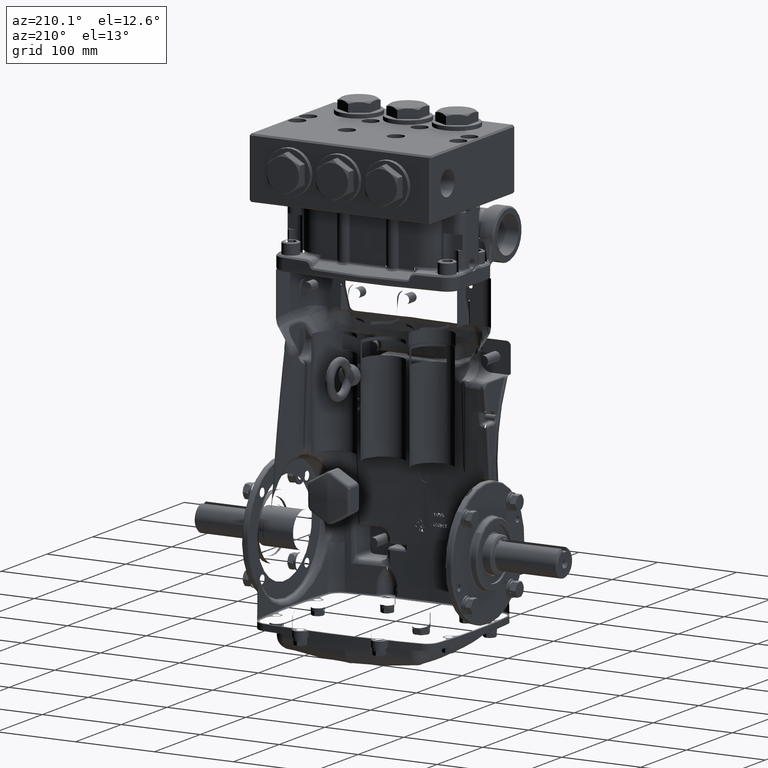
[diagram: clean part render]
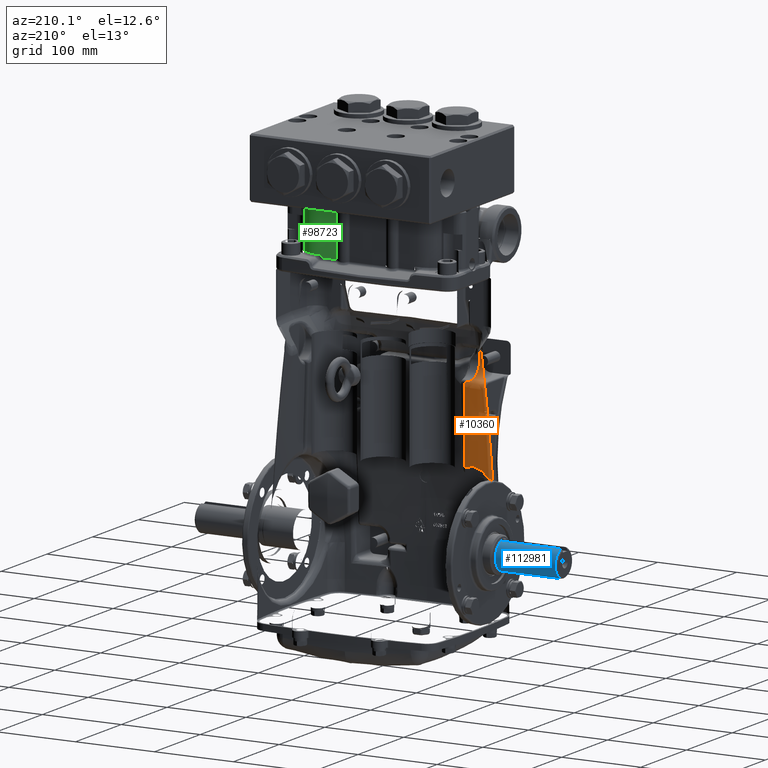
[diagram: same view with three faces highlighted in distinct colors, each labeled with its STEP entity id]
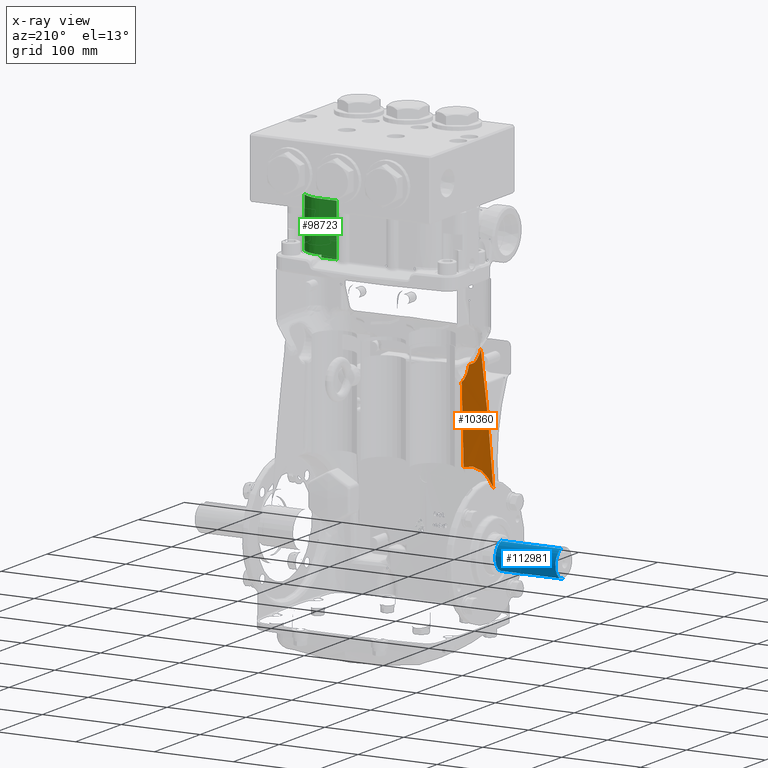
[diagram: x-ray of the same camera — body ghosted, the three highlighted faces saturated]
A machine part, auxiliary view with three faces highlighted in distinct colors.
The next image is the same camera in x-ray (body ghosted, the three faces saturated) — at least one of them is partly hidden behind the body in this view.
Their STEP definitions:

[orange] entity #10360 — the highlighted face is a freeform B-spline surface patch.
#811 = CARTESIAN_POINT ( 'NONE',  ( -3.754939931341113812, -0.8505913285578077243, 7.847891843103959708 ) ) ;
#1310 = CARTESIAN_POINT ( 'NONE',  ( -3.417568248015753873, -3.751042474745041044, 11.77165354330708702 ) ) ;
#1390 = CARTESIAN_POINT ( 'NONE',  ( -3.776933466327653921, -0.4144704050693510111, 7.431135478091147384 ) ) ;
#1775 = CARTESIAN_POINT ( 'NONE',  ( -3.900083861271899099, -0.1905272861021558295, 3.622187970200131613 ) ) ;
#1869 = CARTESIAN_POINT ( 'NONE',  ( -3.997422570790063912, 1.240083270499165558, 0.0000000000000000000 ) ) ;
#3438 = CARTESIAN_POINT ( 'NONE',  ( -3.899509889817446062, -0.3218101855018347113, 3.615279353734566659 ) ) ;
#3993 = CARTESIAN_POINT ( 'NONE',  ( -3.869292407137279177, -1.669603831104615743, 3.215774565174767119 ) ) ;
#4325 = CARTESIAN_POINT ( 'NONE',  ( -3.745405397256179381, -1.019297168964382161, 7.995148589254091220 ) ) ;
#4751 = CARTESIAN_POINT ( 'NONE',  ( -3.690221320976541097, -2.152150252242066131, 7.933309461599891144 ) ) ;
#5499 = VERTEX_POINT ( 'NONE', #1775 ) ;
#5976 = CARTESIAN_POINT ( 'NONE',  ( -3.717047015503661456, -1.632547431282899586, 8.069313270901366408 ) ) ;
#10020 = CARTESIAN_POINT ( 'NONE',  ( -3.773409891457476739, -0.5209831632118981926, 7.491734781914422214 ) ) ;
#10360 = ADVANCED_FACE ( 'NONE', ( #80322 ), #11863, .T. ) ;
#10514 = CARTESIAN_POINT ( 'NONE',  ( -3.641732283464569786, 0.6274064368861428376, 11.77165354330708347 ) ) ;
#11863 = B_SPLINE_SURFACE_WITH_KNOTS ( 'NONE', 3, 1, ( 
 ( #1310, #36480 ),
 ( #71639, #106958 ),
 ( #27819, #63001 ),
 ( #98313, #19156 ),
 ( #54332, #89664 ),
 ( #10514, #45717 ),
 ( #80907, #1869 ),
 ( #37048, #72206 ),
 ( #107534, #28394 ),
 ( #63588, #98875 ) ),
 .UNSPECIFIED., .F., .F., .F.,
 ( 4, 2, 2, 2, 4 ),
 ( 2, 2 ),
 ( 0.0000000000000000000, 0.2500000000000000000, 0.5000000000000000000, 0.7500000000000000000, 1.000000000000000000 ),
 ( 0.0000000000000000000, 1.000000000000000000 ),
 .UNSPECIFIED. ) ;
#12636 = CARTESIAN_POINT ( 'NONE',  ( -3.872431783544598716, -1.581517877405977046, 3.260568824392538367 ) ) ;
#13196 = CARTESIAN_POINT ( 'NONE',  ( -3.822087491181239916, -2.723740690223368510, 2.393946471290625766 ) ) ;
#13388 = CARTESIAN_POINT ( 'NONE',  ( -3.731638203345439830, -2.486075766829086042, 5.851285670890685076 ) ) ;
#13525 = CARTESIAN_POINT ( 'NONE',  ( -3.900083861271899099, -0.1905272861021558295, 3.622187970200131613 ) ) ;
#14612 = CARTESIAN_POINT ( 'NONE',  ( -3.709373360559691246, -1.738042405563170911, 8.132356498959106617 ) ) ;
#18430 = ORIENTED_EDGE ( 'NONE', *, *, #101714, .T. ) ;
#18654 = CARTESIAN_POINT ( 'NONE',  ( -3.769318368709679401, -0.6197733963408518232, 7.564470096886240391 ) ) ;
#19156 = CARTESIAN_POINT ( 'NONE',  ( -3.997422570790063467, -1.240083270499171553, -0.0000000000000000000 ) ) ;
#19557 = EDGE_CURVE ( 'NONE', #104363, #5499, #84045, .T. ) ;
#21288 = CARTESIAN_POINT ( 'NONE',  ( -3.883827321505384678, -1.218921948914640563, 3.416741800702972398 ) ) ;
#21851 = CARTESIAN_POINT ( 'NONE',  ( -3.843060536765828594, -2.295507835828509702, 2.799012528004172662 ) ) ;
#22033 = CARTESIAN_POINT ( 'NONE',  ( -3.788798086309578039, -2.794729232619041159, 3.234050525974934587 ) ) ;
#22166 = CARTESIAN_POINT ( 'NONE',  ( -3.818573009376395433, -0.2122868569371987868, 6.183290905772533819 ) ) ;
#22364 = VERTEX_POINT ( 'NONE', #60453 ) ;
#23267 = CARTESIAN_POINT ( 'NONE',  ( -3.701404276217702183, -1.836539926553573565, 8.207351107120425482 ) ) ;
#23837 = CARTESIAN_POINT ( 'NONE',  ( -3.737838208347059155, -1.235153507968700159, 7.984190958058806409 ) ) ;
#27327 = CARTESIAN_POINT ( 'NONE',  ( -3.762366642654817905, -0.7469393723837720600, 7.696034069038343972 ) ) ;
#27819 = CARTESIAN_POINT ( 'NONE',  ( -3.548114066309883796, -2.506268747040617306, 11.77165354330708880 ) ) ;
#27898 = CARTESIAN_POINT ( 'NONE',  ( -3.780997444336504199, -0.2223176585675564199, 7.363752785689521296 ) ) ;
#28394 = CARTESIAN_POINT ( 'NONE',  ( -3.869527187446669902, 3.093730040150455718, 0.0000000000000000000 ) ) ;
#29957 = CARTESIAN_POINT ( 'NONE',  ( -3.892502864334747681, -0.8401697351386606671, 3.528194618368883706 ) ) ;
#30210 = EDGE_CURVE ( 'NONE', #22364, #89184, #94463, .T. ) ;
#30507 = CARTESIAN_POINT ( 'NONE',  ( -3.850145626050733849, -2.140783189376085804, 2.920894571569414566 ) ) ;
#30836 = CARTESIAN_POINT ( 'NONE',  ( -3.788512813051409633, -0.2203114294713638677, 7.127660418430180833 ) ) ;
#31919 = CARTESIAN_POINT ( 'NONE',  ( -3.685419331667341591, -2.006561380774202430, 8.383984180805537534 ) ) ;
#32491 = CARTESIAN_POINT ( 'NONE',  ( -3.725392419521038612, -1.498443041575093559, 8.016180342806421777 ) ) ;
#35979 = CARTESIAN_POINT ( 'NONE',  ( -3.759073172954851216, -0.7955784368693389341, 7.762163299121864313 ) ) ;
#36480 = CARTESIAN_POINT ( 'NONE',  ( -3.796797284644001458, -3.707321620861105949, 0.0000000000000000000 ) ) ;
#36561 = CARTESIAN_POINT ( 'NONE',  ( -3.777935291468898171, -0.3774929401001533846, 7.414320324859051681 ) ) ;
#36588 = ORIENTED_EDGE ( 'NONE', *, *, #85664, .T. ) ;
#37048 = CARTESIAN_POINT ( 'NONE',  ( -3.548114066309885128, 2.506268747040624856, 11.77165354330709057 ) ) ;
#38622 = CARTESIAN_POINT ( 'NONE',  ( -3.898347808535860270, -0.4522839099925719530, 3.601150043019952562 ) ) ;
#39176 = CARTESIAN_POINT ( 'NONE',  ( -3.864513644164197181, -1.800284007393751384, 3.146883660819024708 ) ) ;
#39510 = CARTESIAN_POINT ( 'NONE',  ( -3.780997444336504199, -0.2223176585675564199, 7.363752785689521296 ) ) ;
#39511 = CARTESIAN_POINT ( 'NONE',  ( -3.748393755315711395, -0.9113142139157254240, 7.999475861940468668 ) ) ;
#39956 = CARTESIAN_POINT ( 'NONE',  ( -3.680159026443142078, -2.054297665865988165, 8.451333862185496315 ) ) ;
#40676 = EDGE_CURVE ( 'NONE', #103519, #22364, #49612, .T. ) ;
#41182 = CARTESIAN_POINT ( 'NONE',  ( -3.720696356319628251, -1.576292425060701330, 8.044229974977257669 ) ) ;
#44644 = CARTESIAN_POINT ( 'NONE',  ( -3.748393755315711395, -0.9113142139157254240, 7.999475861940468668 ) ) ;
#45222 = CARTESIAN_POINT ( 'NONE',  ( -3.774654548920007180, -0.4860925308570608894, 7.470125152249210032 ) ) ;
#45717 = CARTESIAN_POINT ( 'NONE',  ( -4.015748031496064741, 0.6200421058895375648, -0.0000000000000000000 ) ) ;
#46469 = CARTESIAN_POINT ( 'NONE',  ( -3.680159026443142078, -2.054297665865988165, 8.451333862185496315 ) ) ;
#47825 = CARTESIAN_POINT ( 'NONE',  ( -3.870867076245808391, -1.625865235215961491, 3.238330217165832359 ) ) ;
#48150 = CARTESIAN_POINT ( 'NONE',  ( -3.737838208347059155, -1.235153507968700159, 7.984190958058806409 ) ) ;
#48398 = CARTESIAN_POINT ( 'NONE',  ( -3.814269562822266479, -2.881717854759734188, 2.183170254975064672 ) ) ;
#48587 = CARTESIAN_POINT ( 'NONE',  ( -3.721042092262589307, -2.409780614950918665, 6.373109776819114280 ) ) ;
#49612 = B_SPLINE_CURVE_WITH_KNOTS ( 'NONE', 3,
 ( #111088, #31919, #67102, #102422, #23267, #58433, #93763, #14612, #49813, #85067, #5976, #41182, #76306, #111676, #32491, #67679, #102982, #23837 ),
 .UNSPECIFIED., .F., .F.,
 ( 4, 2, 2, 2, 2, 2, 2, 2, 4 ),
 ( 0.0000000000000000000, 0.006240247343162170536, 0.009360371014743263177, 0.01092043285053382641, 0.01248049468632438791, 0.01560061835790553346, 0.01716068019369612618, 0.01872074202948671370, 0.02496098937264907072 ),
 .UNSPECIFIED. ) ;
#49813 = CARTESIAN_POINT ( 'NONE',  ( -3.710676003557208169, -1.720928409916292479, 8.120989154070057836 ) ) ;
#53838 = CARTESIAN_POINT ( 'NONE',  ( -3.770743357319648492, -0.5882091019473515425, 7.538791223564351718 ) ) ;
#54332 = CARTESIAN_POINT ( 'NONE',  ( -3.641732283464570230, -0.6274064368861355101, 11.77165354330708347 ) ) ;
#56462 = CARTESIAN_POINT ( 'NONE',  ( -3.878373006662886979, -1.401827483809511499, 3.343130346974893641 ) ) ;
#56971 = CARTESIAN_POINT ( 'NONE',  ( -3.780997444336504199, -0.2223176585675564199, 7.363752785689521296 ) ) ;
#57023 = CARTESIAN_POINT ( 'NONE',  ( -3.841874392027436080, -2.320782260655985585, 2.777872489006679046 ) ) ;
#57216 = CARTESIAN_POINT ( 'NONE',  ( -3.764992805521135910, -2.685832495951594012, 4.282615849197554780 ) ) ;
#57348 = CARTESIAN_POINT ( 'NONE',  ( -3.845745908636014398, -0.2050330504678378463, 5.329599483975628438 ) ) ;
#58433 = CARTESIAN_POINT ( 'NONE',  ( -3.705404622798468495, -1.788232637405945846, 8.168688963672536829 ) ) ;
#58630 = ORIENTED_EDGE ( 'NONE', *, *, #64517, .T. ) ;
#60453 = CARTESIAN_POINT ( 'NONE',  ( -3.737838208347059155, -1.235153507968700159, 7.984190958058806409 ) ) ;
#62500 = CARTESIAN_POINT ( 'NONE',  ( -3.764780063005184196, -0.7074933652507210402, 7.649011501012681791 ) ) ;
#62949 = ORIENTED_EDGE ( 'NONE', *, *, #19557, .T. ) ;
#63001 = CARTESIAN_POINT ( 'NONE',  ( -3.924311983438357299, -2.476928161784076377, -0.0000000000000000000 ) ) ;
#63588 = CARTESIAN_POINT ( 'NONE',  ( -3.417568248015753873, 3.751042474745048594, 11.77165354330708702 ) ) ;
#64517 = EDGE_CURVE ( 'NONE', #86369, #103519, #83968, .T. ) ;
#65134 = CARTESIAN_POINT ( 'NONE',  ( -3.891233441328823428, -0.9043136029108426177, 3.512151156598650292 ) ) ;
#65697 = CARTESIAN_POINT ( 'NONE',  ( -3.846609922921650160, -2.218755390480803058, 2.860891909300051328 ) ) ;
#65879 = CARTESIAN_POINT ( 'NONE',  ( -3.814269562822266479, -2.881717854759734188, 2.183170254975064672 ) ) ;
#66012 = CARTESIAN_POINT ( 'NONE',  ( -3.798533219434263142, -0.2176364802689064459, 6.812870592509442602 ) ) ;
#67102 = CARTESIAN_POINT ( 'NONE',  ( -3.690736078970262568, -1.954211201120486185, 8.321009974194682357 ) ) ;
#67679 = CARTESIAN_POINT ( 'NONE',  ( -3.730917805338027637, -1.399334866516658726, 7.988865545777100508 ) ) ;
#71140 = CARTESIAN_POINT ( 'NONE',  ( -3.759899130135713641, -0.7840040398620673479, 7.745319522350061270 ) ) ;
#71523 = B_SPLINE_CURVE_WITH_KNOTS ( 'NONE', 3,
 ( #82495, #3438, #38622, #73767, #109096, #29957, #65134, #100450, #21288, #56462, #91794, #12636, #47825, #83057, #3993, #39176, #74326, #109667, #30507, #65697, #101014, #21851, #57023, #92351, #13196, #48398 ),
 .UNSPECIFIED., .F., .F.,
 ( 4, 2, 2, 2, 2, 1, 2, 2, 1, 2, 2, 2, 2, 4 ),
 ( 0.5285926170473562724, 0.5875185399164373212, 0.6169815013509778456, 0.6464444627855183700, 0.7053703856545991968, 0.7348333470891397212, 0.7495648278064098724, 0.7569305681650450035, 0.7642963085236800236, 0.8232222313927604063, 0.8526851928273004866, 0.8674166735445706378, 0.8821481542618406779, 1.000000000000000000 ),
 .UNSPECIFIED. ) ;
#71639 = CARTESIAN_POINT ( 'NONE',  ( -3.492023689482936177, -3.130318220617592129, 11.77165354330708702 ) ) ;
#71722 = CARTESIAN_POINT ( 'NONE',  ( -3.779673058254270579, -0.3014745340102443216, 7.385429307348068129 ) ) ;
#72206 = CARTESIAN_POINT ( 'NONE',  ( -3.924311983438356854, 2.476928161784071047, -0.0000000000000000000 ) ) ;
#73454 = B_SPLINE_CURVE_WITH_KNOTS ( 'NONE', 3,
 ( #44644, #79816, #811, #35979, #71140, #106466, #27327, #62500, #97813, #18654, #53838, #89168, #10020, #45222, #80400, #1390, #36561, #71722, #107041, #27898 ),
 .UNSPECIFIED., .F., .F.,
 ( 4, 2, 2, 2, 2, 2, 2, 2, 2, 4 ),
 ( 4.240118415693535199E-15, 0.006192371119690644882, 0.007740463899612265268, 0.009288556679533885654, 0.01238474223937712643, 0.01548092779922036547, 0.01702902057914198325, 0.01857711335906360103, 0.02167329891890684354, 0.02476948447875008952 ),
 .UNSPECIFIED. ) ;
#73767 = CARTESIAN_POINT ( 'NONE',  ( -3.895769472819685664, -0.6467486248432833262, 3.569167550180773141 ) ) ;
#74326 = CARTESIAN_POINT ( 'NONE',  ( -3.859433374556032081, -1.926026002146785432, 3.070392044405892751 ) ) ;
#74646 = CARTESIAN_POINT ( 'NONE',  ( -3.783502588550809786, -0.2216489098038923744, 7.285055330663443129 ) ) ;
#76306 = CARTESIAN_POINT ( 'NONE',  ( -3.721893335573084993, -1.557189118330435829, 8.036514248189597254 ) ) ;
#76653 = ORIENTED_EDGE ( 'NONE', *, *, #30210, .T. ) ;
#77596 = ORIENTED_EDGE ( 'NONE', *, *, #40676, .T. ) ;
#79816 = CARTESIAN_POINT ( 'NONE',  ( -3.751624373794621548, -0.8855905037069840002, 7.921232832945682034 ) ) ;
#80322 = FACE_OUTER_BOUND ( 'NONE', #109773, .T. ) ;
#80400 = CARTESIAN_POINT ( 'NONE',  ( -3.775247254763609117, -0.4683819113088635300, 7.459929943147075804 ) ) ;
#80907 = CARTESIAN_POINT ( 'NONE',  ( -3.622968540720541863, 1.254811875291648615, 11.77165354330708347 ) ) ;
#82495 = CARTESIAN_POINT ( 'NONE',  ( -3.900083861271899099, -0.1905272861021558295, 3.622187970200131613 ) ) ;
#83057 = CARTESIAN_POINT ( 'NONE',  ( -3.870346373639837356, -1.640441899900868972, 3.230895983128948767 ) ) ;
#83379 = CARTESIAN_POINT ( 'NONE',  ( -3.741886732141257887, -1.127243590234410231, 7.990053411561637731 ) ) ;
#83823 = CARTESIAN_POINT ( 'NONE',  ( -3.700334994682191958, -2.242825148933180301, 7.414059606587729334 ) ) ;
#83968 = B_SPLINE_CURVE_WITH_KNOTS ( 'NONE', 3,
 ( #65879, #101193, #22033, #57216, #92541, #13388, #48587, #83823, #4751, #39956 ),
 .UNSPECIFIED., .F., .F.,
 ( 4, 2, 2, 2, 4 ),
 ( 0.01666758239055282295, 0.05685160518897099113, 0.09703562798738915585, 0.1372196507858073067, 0.1774036735842254853 ),
 .UNSPECIFIED. ) ;
#84045 = B_SPLINE_CURVE_WITH_KNOTS ( 'NONE', 3,
 ( #39510, #74646, #110003, #30836, #66012, #101327, #22166, #57348, #92675, #13525 ),
 .UNSPECIFIED., .F., .F.,
 ( 4, 3, 3, 4 ),
 ( 0.0000000000000000000, 0.006000000000000210026, 0.03000000000002945449, 0.09508657816118404327 ),
 .UNSPECIFIED. ) ;
#85067 = CARTESIAN_POINT ( 'NONE',  ( -3.714536455680074400, -1.668648022200522218, 8.088609970686517769 ) ) ;
#85664 = EDGE_CURVE ( 'NONE', #89184, #104363, #73454, .T. ) ;
#86369 = VERTEX_POINT ( 'NONE', #102489 ) ;
#89168 = CARTESIAN_POINT ( 'NONE',  ( -3.772757130843106488, -0.5381749237250930129, 7.503164468073755700 ) ) ;
#89184 = VERTEX_POINT ( 'NONE', #91133 ) ;
#89664 = CARTESIAN_POINT ( 'NONE',  ( -4.015748031496065629, -0.6200421058895443371, 0.0000000000000000000 ) ) ;
#91133 = CARTESIAN_POINT ( 'NONE',  ( -3.748393755315711395, -0.9113142139157254240, 7.999475861940468668 ) ) ;
#91794 = CARTESIAN_POINT ( 'NONE',  ( -3.875499993340561389, -1.492362655881264599, 3.303767457581061606 ) ) ;
#92351 = CARTESIAN_POINT ( 'NONE',  ( -3.831246810553738058, -2.545102256426313492, 2.585038551620181480 ) ) ;
#92541 = CARTESIAN_POINT ( 'NONE',  ( -3.753613134187271161, -2.624095813736244232, 4.806063332375431152 ) ) ;
#92675 = CARTESIAN_POINT ( 'NONE',  ( -3.872916300475591544, -0.1977799182114888532, 4.475907976635101093 ) ) ;
#93763 = CARTESIAN_POINT ( 'NONE',  ( -3.706739506649596727, -1.771673135934385357, 8.156187938608006505 ) ) ;
#94463 = B_SPLINE_CURVE_WITH_KNOTS ( 'NONE', 3,
 ( #48150, #83379, #4325, #39511 ),
 .UNSPECIFIED., .F., .F.,
 ( 4, 4 ),
 ( 0.0000000000000000000, 0.008237678775590975139 ),
 .UNSPECIFIED. ) ;
#97813 = CARTESIAN_POINT ( 'NONE',  ( -3.766336763381120889, -0.6794155713207969960, 7.619580191137492520 ) ) ;
#98313 = CARTESIAN_POINT ( 'NONE',  ( -3.622968540720540975, -1.254811875291640400, 11.77165354330708702 ) ) ;
#98875 = CARTESIAN_POINT ( 'NONE',  ( -3.796797284644001458, 3.707321620861099287, 0.0000000000000000000 ) ) ;
#100450 = CARTESIAN_POINT ( 'NONE',  ( -3.887074780069263547, -1.094537786974343119, 3.458997003108912782 ) ) ;
#101014 = CARTESIAN_POINT ( 'NONE',  ( -3.845427901030976869, -2.244502160953766090, 2.840515678071627192 ) ) ;
#101193 = CARTESIAN_POINT ( 'NONE',  ( -3.801225847105592415, -2.841893596247460518, 2.708852119735430275 ) ) ;
#101327 = CARTESIAN_POINT ( 'NONE',  ( -3.808553284870069167, -0.2149616227673292190, 6.498080754956228944 ) ) ;
#101714 = EDGE_CURVE ( 'NONE', #5499, #86369, #71523, .T. ) ;
#102422 = CARTESIAN_POINT ( 'NONE',  ( -3.698734441039687404, -1.867045657596078767, 8.234735071284530861 ) ) ;
#102489 = CARTESIAN_POINT ( 'NONE',  ( -3.814269562822266479, -2.881717854759734188, 2.183170254975064672 ) ) ;
#102982 = CARTESIAN_POINT ( 'NONE',  ( -3.734721417554632605, -1.318228884353531472, 7.979677697910785739 ) ) ;
#103519 = VERTEX_POINT ( 'NONE', #46469 ) ;
#104363 = VERTEX_POINT ( 'NONE', #56971 ) ;
#106466 = CARTESIAN_POINT ( 'NONE',  ( -3.761546061077516434, -0.7596846554282432606, 7.712249901229413673 ) ) ;
#106958 = CARTESIAN_POINT ( 'NONE',  ( -3.869527187446668570, -3.093730040150461491, 0.0000000000000000000 ) ) ;
#107041 = CARTESIAN_POINT ( 'NONE',  ( -3.780409702901190272, -0.2623913758668823815, 7.373342612215260772 ) ) ;
#107534 = CARTESIAN_POINT ( 'NONE',  ( -3.492023689482935733, 3.130318220617600122, 11.77165354330708702 ) ) ;
#109096 = CARTESIAN_POINT ( 'NONE',  ( -3.894770825001792947, -0.7113625718504220652, 3.556708631439838619 ) ) ;
#109667 = CARTESIAN_POINT ( 'NONE',  ( -3.852488980025727816, -2.087825855357777094, 2.959394971194441837 ) ) ;
#109773 = EDGE_LOOP ( 'NONE', ( #36588, #62949, #18430, #58630, #77596, #76653 ) ) ;
#110003 = CARTESIAN_POINT ( 'NONE',  ( -3.786007711455698033, -0.2209801667719778207, 7.206357874910318095 ) ) ;
#111088 = CARTESIAN_POINT ( 'NONE',  ( -3.680159026443142078, -2.054297665865988165, 8.451333862185496315 ) ) ;
#111676 = CARTESIAN_POINT ( 'NONE',  ( -3.724243920058526669, -1.518225769845524820, 8.022471463013435056 ) ) ;

[blue] entity #112981 — the highlighted cylindrical surface (edge-blend (fillet) strip) has radius 17.5 mm, axis along (1, -0, -0).
#696 = DIRECTION ( 'NONE',  ( 1.000000000000000000, -0.0000000000000000000, -0.0000000000000000000 ) ) ;
#1740 = AXIS2_PLACEMENT_3D ( 'NONE', #24221, #59396, #94724 ) ;
#3634 = CARTESIAN_POINT ( 'NONE',  ( -6.101584861905443802, 0.1968503937007876070, 0.6602562925688360007 ) ) ;
#6969 = CARTESIAN_POINT ( 'NONE',  ( -9.064960629921257507, 0.1968503937007875793, 0.6602562925688360007 ) ) ;
#7305 = CARTESIAN_POINT ( 'NONE',  ( -9.064960629921257507, 1.247019192167489158E-16, -0.6889763779527559029 ) ) ;
#12006 = DIRECTION ( 'NONE',  ( -1.000000000000000000, -0.0000000000000000000, -0.0000000000000000000 ) ) ;
#15981 = AXIS2_PLACEMENT_3D ( 'NONE', #79698, #696, #35871 ) ;
#17977 = FACE_OUTER_BOUND ( 'NONE', #58785, .T. ) ;
#21483 = CARTESIAN_POINT ( 'NONE',  ( -6.002514865728548976, 0.1637955981153098872, 0.6692544603896189992 ) ) ;
#22110 = ORIENTED_EDGE ( 'NONE', *, *, #43726, .T. ) ;
#24221 = CARTESIAN_POINT ( 'NONE',  ( -8.986220472440942686, 1.247019192167489158E-16, 2.958535915340133546E-16 ) ) ;
#28380 = VERTEX_POINT ( 'NONE', #84224 ) ;
#30155 = CARTESIAN_POINT ( 'NONE',  ( -6.039756187563379619, 0.1833395160448448580, 0.6641439829184337951 ) ) ;
#30778 = ORIENTED_EDGE ( 'NONE', *, *, #77251, .T. ) ;
#32071 = CIRCLE ( 'NONE', #96703, 0.6889763779527561249 ) ;
#35871 = DIRECTION ( 'NONE',  ( 0.0000000000000000000, 0.0000000000000000000, -1.000000000000000000 ) ) ;
#36728 = CIRCLE ( 'NONE', #1740, 0.6889763779527561249 ) ;
#38813 = CARTESIAN_POINT ( 'NONE',  ( -6.091069338741239569, 0.1959966182939283097, 0.6605125895253513013 ) ) ;
#40604 = ORIENTED_EDGE ( 'NONE', *, *, #61890, .T. ) ;
#41445 = VERTEX_POINT ( 'NONE', #105562 ) ;
#41850 = ORIENTED_EDGE ( 'NONE', *, *, #59107, .T. ) ;
#42168 = DIRECTION ( 'NONE',  ( 1.000000000000000000, -0.0000000000000000000, -0.0000000000000000000 ) ) ;
#42338 = CARTESIAN_POINT ( 'NONE',  ( -5.994094488188974168, 0.1574803149606301689, 0.6707372061968830401 ) ) ;
#42510 = DIRECTION ( 'NONE',  ( 1.000000000000000000, -0.0000000000000000000, -0.0000000000000000000 ) ) ;
#42639 = CARTESIAN_POINT ( 'NONE',  ( -8.986220472440942686, 0.1968503937007875793, 0.6602562925688360007 ) ) ;
#43726 = EDGE_CURVE ( 'NONE', #48479, #41445, #86079, .T. ) ;
#44530 = CYLINDRICAL_SURFACE ( 'NONE', #15981, 0.6889763779527561249 ) ;
#47194 = DIRECTION ( 'NONE',  ( 0.0000000000000000000, 0.0000000000000000000, -1.000000000000000000 ) ) ;
#47645 = ORIENTED_EDGE ( 'NONE', *, *, #69555, .F. ) ;
#48015 = CARTESIAN_POINT ( 'NONE',  ( -5.994094488188974168, 1.247019192167489158E-16, -0.6889763779527559029 ) ) ;
#48479 = VERTEX_POINT ( 'NONE', #42639 ) ;
#56662 = CARTESIAN_POINT ( 'NONE',  ( -5.994094488188974168, 0.1574803149606301689, 0.6707372061968830401 ) ) ;
#58779 = B_SPLINE_CURVE_WITH_KNOTS ( 'NONE', 3,
 ( #91430, #3634, #38813, #73963, #109299, #30155, #65335, #100646, #21483, #56662 ),
 .UNSPECIFIED., .F., .F.,
 ( 4, 2, 2, 2, 4 ),
 ( 0.02357046022046372161, 0.02437403554017592705, 0.02517761085988813596, 0.02598118617960034488, 0.02678476149931255032 ),
 .UNSPECIFIED. ) ;
#58785 = EDGE_LOOP ( 'NONE', ( #47645, #41850, #22110, #30778, #40604 ) ) ;
#59107 = EDGE_CURVE ( 'NONE', #28380, #48479, #36728, .T. ) ;
#59396 = DIRECTION ( 'NONE',  ( 1.000000000000000000, 0.0000000000000000000, 0.0000000000000000000 ) ) ;
#61169 = VERTEX_POINT ( 'NONE', #48015 ) ;
#61890 = EDGE_CURVE ( 'NONE', #63287, #61169, #32071, .T. ) ;
#63287 = VERTEX_POINT ( 'NONE', #42338 ) ;
#64051 = VECTOR ( 'NONE', #42510, 39.37007874015748143 ) ;
#65335 = CARTESIAN_POINT ( 'NONE',  ( -6.030096709648472775, 0.1792161730827915023, 0.6652784150168924437 ) ) ;
#69555 = EDGE_CURVE ( 'NONE', #28380, #61169, #86423, .T. ) ;
#73963 = CARTESIAN_POINT ( 'NONE',  ( -6.070242191542488897, 0.1926149650089243603, 0.6615066368213938786 ) ) ;
#77251 = EDGE_CURVE ( 'NONE', #41445, #63287, #58779, .T. ) ;
#79698 = CARTESIAN_POINT ( 'NONE',  ( -9.064960629921257507, 1.247019192167489158E-16, 2.958535915340133546E-16 ) ) ;
#79723 = VECTOR ( 'NONE', #42168, 39.37007874015748143 ) ;
#84224 = CARTESIAN_POINT ( 'NONE',  ( -8.986220472440942686, 1.247019192167489158E-16, -0.6889763779527559029 ) ) ;
#86079 = LINE ( 'NONE', #6969, #79723 ) ;
#86423 = LINE ( 'NONE', #7305, #64051 ) ;
#91161 = CARTESIAN_POINT ( 'NONE',  ( -5.994094488188974168, 1.247019192167489158E-16, 2.958535915340133546E-16 ) ) ;
#91430 = CARTESIAN_POINT ( 'NONE',  ( -6.112204724409446399, 0.1968503937007875793, 0.6602562925688360007 ) ) ;
#94724 = DIRECTION ( 'NONE',  ( 0.0000000000000000000, 8.881784197001252323E-16, 1.000000000000000000 ) ) ;
#96703 = AXIS2_PLACEMENT_3D ( 'NONE', #91161, #12006, #47194 ) ;
#100646 = CARTESIAN_POINT ( 'NONE',  ( -6.011511536557696544, 0.1694728435551889068, 0.6678268948456239640 ) ) ;
#105562 = CARTESIAN_POINT ( 'NONE',  ( -6.112204724409446399, 0.1968503937007875793, 0.6602562925688360007 ) ) ;
#109299 = CARTESIAN_POINT ( 'NONE',  ( -6.059838529839572274, 0.1900524935405055182, 0.6622542245160498720 ) ) ;
#112981 = ADVANCED_FACE ( 'NONE', ( #17977 ), #44530, .T. ) ;

[green] entity #98723 — the highlighted face is a freeform B-spline surface patch.
#706 = CARTESIAN_POINT ( 'NONE',  ( 2.850143898101965778, 1.262442438531284017, 12.59842519685038731 ) ) ;
#953 = VECTOR ( 'NONE', #10722, 39.37007874015748143 ) ;
#2040 = CARTESIAN_POINT ( 'NONE',  ( 1.509782253084626547, 1.318897637795270139, 15.15748031496063142 ) ) ;
#2109 = VERTEX_POINT ( 'NONE', #6682 ) ;
#2592 = CARTESIAN_POINT ( 'NONE',  ( 2.285751110422260979, 1.318897637795270139, 12.48031496062992218 ) ) ;
#3156 = CARTESIAN_POINT ( 'NONE',  ( 2.850143898101972439, 1.262442438531285571, 13.37270341207348778 ) ) ;
#3717 = CARTESIAN_POINT ( 'NONE',  ( 3.363210646220285316, 0.9463571806985519030, 14.26509186351706049 ) ) ;
#4534 = VERTEX_POINT ( 'NONE', #73760 ) ;
#5009 = CARTESIAN_POINT ( 'NONE',  ( 3.323049694068826110, 0.9844939446517767534, 15.07874015748031304 ) ) ;
#6506 = CARTESIAN_POINT ( 'NONE',  ( 1.835099036694013419, 1.318897637795270139, 15.07874015748031837 ) ) ;
#6518 = VERTEX_POINT ( 'NONE', #51621 ) ;
#6682 = CARTESIAN_POINT ( 'NONE',  ( 3.384594777117261089, 0.9214189156629364330, 12.59842519685039441 ) ) ;
#9173 = EDGE_CURVE ( 'NONE', #4534, #2109, #55352, .T. ) ;
#9343 = CARTESIAN_POINT ( 'NONE',  ( 2.401574967910743652, 1.318897637795270139, 12.59842519685039441 ) ) ;
#10685 = CARTESIAN_POINT ( 'NONE',  ( 1.509782253084626547, 1.318897637795270139, 12.48031496062992218 ) ) ;
#10722 = DIRECTION ( 'NONE',  ( 0.0000000000000000000, 0.0000000000000000000, 1.000000000000000000 ) ) ;
#11246 = CARTESIAN_POINT ( 'NONE',  ( 2.130557338954738533, 1.318897637795270139, 13.37270341207349134 ) ) ;
#11806 = CARTESIAN_POINT ( 'NONE',  ( 2.633084610596055697, 1.310654282539071680, 14.26509186351705516 ) ) ;
#11870 = VECTOR ( 'NONE', #29361, 39.37007874015748143 ) ;
#12353 = CARTESIAN_POINT ( 'NONE',  ( 3.255431851186526782, 1.045061894509423883, 15.15748031496063497 ) ) ;
#13153 = VERTEX_POINT ( 'NONE', #99681 ) ;
#15149 = CARTESIAN_POINT ( 'NONE',  ( 2.440944881870370509, 1.318897637795270139, 15.07874015748031304 ) ) ;
#15249 = EDGE_CURVE ( 'NONE', #13153, #69756, #57116, .T. ) ;
#15283 = ORIENTED_EDGE ( 'NONE', *, *, #45400, .F. ) ;
#16420 = CARTESIAN_POINT ( 'NONE',  ( 1.554538636781045424, 1.318897637795270139, 12.48031496062992218 ) ) ;
#17578 = ORIENTED_EDGE ( 'NONE', *, *, #42633, .F. ) ;
#18123 = VERTEX_POINT ( 'NONE', #100887 ) ;
#19897 = CARTESIAN_POINT ( 'NONE',  ( 1.820169796019682984, 1.318897637795270139, 14.26509186351706049 ) ) ;
#20454 = CARTESIAN_POINT ( 'NONE',  ( 2.492525659874011534, 1.318897637795270139, 15.15748031496063142 ) ) ;
#21013 = CARTESIAN_POINT ( 'NONE',  ( 3.255431851186497028, 1.045061894509415668, 12.48031496062991330 ) ) ;
#21069 = CARTESIAN_POINT ( 'NONE',  ( 2.440944881870370509, 1.318897637795270139, 15.07874015748031304 ) ) ;
#22788 = CARTESIAN_POINT ( 'NONE',  ( 3.384594777117261089, 0.9214189156629364330, 12.48031496062992041 ) ) ;
#22864 = CARTESIAN_POINT ( 'NONE',  ( 2.529287525131370895, 1.318883146999553002, 15.07874015748031127 ) ) ;
#27222 = CARTESIAN_POINT ( 'NONE',  ( 3.384594777117261089, 0.9214189156629364330, 12.59842519685039441 ) ) ;
#28562 = CARTESIAN_POINT ( 'NONE',  ( 1.664976024552150102, 1.318897637795270139, 15.15748031496063142 ) ) ;
#29127 = CARTESIAN_POINT ( 'NONE',  ( 2.492525659874011534, 1.318897637795270139, 12.48031496062992218 ) ) ;
#29361 = DIRECTION ( 'NONE',  ( -0.0000000000000000000, -0.0000000000000000000, -1.000000000000000000 ) ) ;
#29675 = CARTESIAN_POINT ( 'NONE',  ( 3.065188857792689792, 1.168583526169710840, 13.37270341207348956 ) ) ;
#30027 = EDGE_LOOP ( 'NONE', ( #79725, #15283, #43413, #106227, #78974, #83491, #17578 ) ) ;
#30233 = CARTESIAN_POINT ( 'NONE',  ( 3.418084539054397908, 0.8858267716535380698, 14.26509186351706049 ) ) ;
#30975 = CARTESIAN_POINT ( 'NONE',  ( 2.440944881889763884, 1.318897637795270139, 12.48031496062992218 ) ) ;
#31512 = CARTESIAN_POINT ( 'NONE',  ( 2.871827268061823535, 1.249620278744999036, 15.07874015748031127 ) ) ;
#35880 = CARTESIAN_POINT ( 'NONE',  ( 3.065188857792699118, 1.168583526169712616, 12.59842519685039619 ) ) ;
#37218 = CARTESIAN_POINT ( 'NONE',  ( 1.664976024552169198, 1.318897637795270139, 12.48031496062992218 ) ) ;
#37775 = CARTESIAN_POINT ( 'NONE',  ( 2.285751110422254762, 1.318897637795270139, 13.37270341207349134 ) ) ;
#38339 = CARTESIAN_POINT ( 'NONE',  ( 2.850143898101979101, 1.262442438531287348, 14.26509186351705871 ) ) ;
#38895 = CARTESIAN_POINT ( 'NONE',  ( 3.363210646220285316, 0.9463571806985520141, 15.15748031496063142 ) ) ;
#40213 = CARTESIAN_POINT ( 'NONE',  ( 3.254649073316742136, 1.041678439678416446, 15.07874015748031482 ) ) ;
#41709 = CARTESIAN_POINT ( 'NONE',  ( 1.694834505900828514, 1.318897637795270139, 15.07874015748031837 ) ) ;
#42633 = EDGE_CURVE ( 'NONE', #69756, #18123, #103157, .T. ) ;
#43413 = ORIENTED_EDGE ( 'NONE', *, *, #9173, .F. ) ;
#44538 = CARTESIAN_POINT ( 'NONE',  ( 2.492525659874011534, 1.318897637795270139, 12.59842519685039441 ) ) ;
#45400 = EDGE_CURVE ( 'NONE', #2109, #13153, #101949, .T. ) ;
#45879 = CARTESIAN_POINT ( 'NONE',  ( 1.509782253084626547, 1.318897637795270139, 13.37270341207349134 ) ) ;
#46434 = EDGE_CURVE ( 'NONE', #18123, #58200, #73182, .T. ) ;
#46441 = CARTESIAN_POINT ( 'NONE',  ( 2.130557338954728763, 1.318897637795270139, 14.26509186351705871 ) ) ;
#46990 = CARTESIAN_POINT ( 'NONE',  ( 2.633084610596057917, 1.310654282539073012, 15.15748031496062254 ) ) ;
#47545 = CARTESIAN_POINT ( 'NONE',  ( 3.363210646220285316, 0.9463571806985514590, 12.48031496062992218 ) ) ;
#50351 = CARTESIAN_POINT ( 'NONE',  ( 2.285751110422241883, 1.318897637795270139, 15.07874015748031837 ) ) ;
#51621 = CARTESIAN_POINT ( 'NONE',  ( 2.322834645669291209, 1.318897637795270139, 12.48031496062992218 ) ) ;
#53163 = CARTESIAN_POINT ( 'NONE',  ( 2.322834645669290321, 1.318897637795270139, 12.59842519685039441 ) ) ;
#54537 = LINE ( 'NONE', #89869, #953 ) ;
#55059 = CARTESIAN_POINT ( 'NONE',  ( 1.820169796019673658, 1.318897637795270139, 15.15748031496063142 ) ) ;
#55352 = B_SPLINE_CURVE_WITH_KNOTS ( 'NONE', 3,
 ( #53163, #88474, #9343, #44538, #79705, #706, #35880, #71035, #106351, #27222 ),
 .UNSPECIFIED., .F., .F.,
 ( 4, 2, 1, 1, 1, 1, 4 ),
 ( -0.002994448721608122463, 2.232803553593645102E-05, 0.003974731967258319891, 0.01079688359542647219, 0.01697400112556420732, 0.02186986337981011719, 0.02688171462884287460 ),
 .UNSPECIFIED. ) ;
#55627 = CARTESIAN_POINT ( 'NONE',  ( 2.633084610596051256, 1.310654282539068349, 12.48031496062992041 ) ) ;
#56187 = CARTESIAN_POINT ( 'NONE',  ( 3.255431851186506798, 1.045061894509418554, 13.37270341207348778 ) ) ;
#57116 = B_SPLINE_CURVE_WITH_KNOTS ( 'NONE', 3,
 ( #84083, #5009, #40213, #75330, #110688, #31512, #66693, #102023, #22864, #58029 ),
 .UNSPECIFIED., .F., .F.,
 ( 4, 2, 2, 2, 4 ),
 ( 0.0000000000000000000, 0.2499999999999999722, 0.5000000000000000000, 0.7500000000000000000, 1.000000000000000000 ),
 .UNSPECIFIED. ) ;
#57957 = DIRECTION ( 'NONE',  ( 0.0000000000000000000, 0.0000000000000000000, 1.000000000000000000 ) ) ;
#58029 = CARTESIAN_POINT ( 'NONE',  ( 2.440944881870370509, 1.318897637795270139, 15.07874015748031304 ) ) ;
#58200 = VERTEX_POINT ( 'NONE', #16420 ) ;
#63747 = CARTESIAN_POINT ( 'NONE',  ( 1.820169796019702080, 1.318897637795270139, 12.48031496062992218 ) ) ;
#64308 = CARTESIAN_POINT ( 'NONE',  ( 2.492525659874011534, 1.318897637795270139, 13.37270341207349134 ) ) ;
#64853 = CARTESIAN_POINT ( 'NONE',  ( 3.065188857792679133, 1.168583526169708620, 14.26509186351705516 ) ) ;
#65416 = CARTESIAN_POINT ( 'NONE',  ( 3.418084539054397908, 0.8858267716535380698, 15.15748031496063142 ) ) ;
#66146 = DIRECTION ( 'NONE',  ( 1.000000000000000000, -0.0000000000000000000, -0.0000000000000000000 ) ) ;
#66693 = CARTESIAN_POINT ( 'NONE',  ( 2.786859335256094194, 1.275708682937149341, 15.07874015748031304 ) ) ;
#69756 = VERTEX_POINT ( 'NONE', #21069 ) ;
#71035 = CARTESIAN_POINT ( 'NONE',  ( 3.241729690744388659, 1.053958480842963619, 12.59842519685038553 ) ) ;
#72382 = CARTESIAN_POINT ( 'NONE',  ( 1.664976024552162981, 1.318897637795270139, 13.37270341207349134 ) ) ;
#72932 = CARTESIAN_POINT ( 'NONE',  ( 2.285751110422248544, 1.318897637795270139, 14.26509186351705871 ) ) ;
#73182 = LINE ( 'NONE', #108512, #11870 ) ;
#73494 = CARTESIAN_POINT ( 'NONE',  ( 2.850143898101985762, 1.262442438531288902, 15.15748031496063142 ) ) ;
#73760 = CARTESIAN_POINT ( 'NONE',  ( 2.322834645669290321, 1.318897637795270139, 12.59842519685039441 ) ) ;
#74046 = CARTESIAN_POINT ( 'NONE',  ( 3.418084539054397908, 0.8858267716535379588, 12.48031496062992218 ) ) ;
#75330 = CARTESIAN_POINT ( 'NONE',  ( 3.109930106363124835, 1.139965979664214535, 15.07874015748031304 ) ) ;
#76862 = CARTESIAN_POINT ( 'NONE',  ( 1.554569975107644275, 1.318897637795270139, 15.07874015748031304 ) ) ;
#77336 = B_SPLINE_SURFACE_WITH_KNOTS ( 'NONE', 3, 3, ( 
 ( #10685, #45879, #81073, #2040 ),
 ( #37218, #72382, #107705, #28562 ),
 ( #63747, #99049, #19897, #55059 ),
 ( #90389, #11246, #46441, #81646 ),
 ( #2592, #37775, #72932, #108263 ),
 ( #29127, #64308, #99606, #20454 ),
 ( #55627, #90960, #11806, #46990 ),
 ( #82203, #3156, #38339, #73494 ),
 ( #108818, #29675, #64853, #100174 ),
 ( #21013, #56187, #91510, #12353 ),
 ( #47545, #82771, #3717, #38895 ),
 ( #74046, #109386, #30233, #65416 ) ),
 .UNSPECIFIED., .F., .F., .F.,
 ( 4, 2, 2, 1, 1, 1, 1, 4 ),
 ( 4, 4 ),
 ( 0.08748303663930334650, 0.1133918405110347083, 0.1393006443827660701, 0.1479117303136645301, 0.1627751235595502888, 0.1762331837113362831, 0.1868997783472701180, 0.2005390030465467044 ),
 ( 0.0000000000000000000, 1.000000000000000000 ),
 .UNSPECIFIED. ) ;
#78064 = VECTOR ( 'NONE', #57957, 39.37007874015748143 ) ;
#78974 = ORIENTED_EDGE ( 'NONE', *, *, #100603, .F. ) ;
#79705 = CARTESIAN_POINT ( 'NONE',  ( 2.633084610596051700, 1.310654282539068349, 12.59842519685038909 ) ) ;
#79725 = ORIENTED_EDGE ( 'NONE', *, *, #15249, .F. ) ;
#81073 = CARTESIAN_POINT ( 'NONE',  ( 1.509782253084626547, 1.318897637795270139, 14.26509186351706049 ) ) ;
#81646 = CARTESIAN_POINT ( 'NONE',  ( 2.130557338954719437, 1.318897637795270139, 15.15748031496063142 ) ) ;
#82203 = CARTESIAN_POINT ( 'NONE',  ( 2.850143898101965778, 1.262442438531284017, 12.48031496062991685 ) ) ;
#82771 = CARTESIAN_POINT ( 'NONE',  ( 3.363210646220285316, 0.9463571806985517920, 13.37270341207349134 ) ) ;
#83491 = ORIENTED_EDGE ( 'NONE', *, *, #46434, .F. ) ;
#84083 = CARTESIAN_POINT ( 'NONE',  ( 3.384594777117261089, 0.9214189156629364330, 15.07874015748031304 ) ) ;
#85616 = CARTESIAN_POINT ( 'NONE',  ( 2.130557338954720326, 1.318897637795270139, 15.07874015748031837 ) ) ;
#88474 = CARTESIAN_POINT ( 'NONE',  ( 2.362204800279653405, 1.318897637795270139, 12.59842519685039441 ) ) ;
#89832 = FACE_OUTER_BOUND ( 'NONE', #30027, .T. ) ;
#89869 = CARTESIAN_POINT ( 'NONE',  ( 2.322834645669291209, 1.318897637795270139, 12.48031496062992218 ) ) ;
#90389 = CARTESIAN_POINT ( 'NONE',  ( 2.130557338954747859, 1.318897637795270139, 12.48031496062992218 ) ) ;
#90960 = CARTESIAN_POINT ( 'NONE',  ( 2.633084610596053476, 1.310654282539070126, 13.37270341207348778 ) ) ;
#91510 = CARTESIAN_POINT ( 'NONE',  ( 3.255431851186516568, 1.045061894509421219, 14.26509186351706049 ) ) ;
#98723 = ADVANCED_FACE ( 'NONE', ( #89832 ), #77336, .F. ) ;
#99049 = CARTESIAN_POINT ( 'NONE',  ( 1.820169796019692532, 1.318897637795270139, 13.37270341207349134 ) ) ;
#99606 = CARTESIAN_POINT ( 'NONE',  ( 2.492525659874011090, 1.318897637795270139, 14.26509186351706049 ) ) ;
#99681 = CARTESIAN_POINT ( 'NONE',  ( 3.384594777117261089, 0.9214189156629364330, 15.07874015748031304 ) ) ;
#100174 = CARTESIAN_POINT ( 'NONE',  ( 3.065188857792668475, 1.168583526169706177, 15.15748031496061898 ) ) ;
#100603 = EDGE_CURVE ( 'NONE', #58200, #6518, #110145, .T. ) ;
#100887 = CARTESIAN_POINT ( 'NONE',  ( 1.554569975107644275, 1.318897637795270139, 15.07874015748031304 ) ) ;
#101949 = LINE ( 'NONE', #22788, #78064 ) ;
#102023 = CARTESIAN_POINT ( 'NONE',  ( 2.616333795146938535, 1.310039910460851109, 15.07874015748031304 ) ) ;
#103157 = B_SPLINE_CURVE_WITH_KNOTS ( 'NONE', 3,
 ( #15149, #50351, #85616, #6506, #41709, #76862 ),
 .UNSPECIFIED., .F., .F.,
 ( 4, 2, 4 ),
 ( -1.000000000000000000, -0.4747355976223323615, -0.0000000000000000000 ),
 .UNSPECIFIED. ) ;
#106227 = ORIENTED_EDGE ( 'NONE', *, *, #110779, .F. ) ;
#106351 = CARTESIAN_POINT ( 'NONE',  ( 3.338905165233743144, 0.9682076710238667339, 12.59842519685038909 ) ) ;
#107705 = CARTESIAN_POINT ( 'NONE',  ( 1.664976024552156764, 1.318897637795270139, 14.26509186351706049 ) ) ;
#108263 = CARTESIAN_POINT ( 'NONE',  ( 2.285751110422241883, 1.318897637795270139, 15.15748031496063142 ) ) ;
#108512 = CARTESIAN_POINT ( 'NONE',  ( 1.554569975107644275, 1.318897637795270139, 15.15748031496063142 ) ) ;
#108818 = CARTESIAN_POINT ( 'NONE',  ( 3.065188857792700894, 1.168583526169713060, 12.48031496062992396 ) ) ;
#109386 = CARTESIAN_POINT ( 'NONE',  ( 3.418084539054397908, 0.8858267716535379588, 13.37270341207349134 ) ) ;
#110145 = LINE ( 'NONE', #30975, #110591 ) ;
#110591 = VECTOR ( 'NONE', #66146, 39.37007874015748143 ) ;
#110688 = CARTESIAN_POINT ( 'NONE',  ( 3.033495812874868136, 1.181502140302689075, 15.07874015748031482 ) ) ;
#110779 = EDGE_CURVE ( 'NONE', #6518, #4534, #54537, .T. ) ;